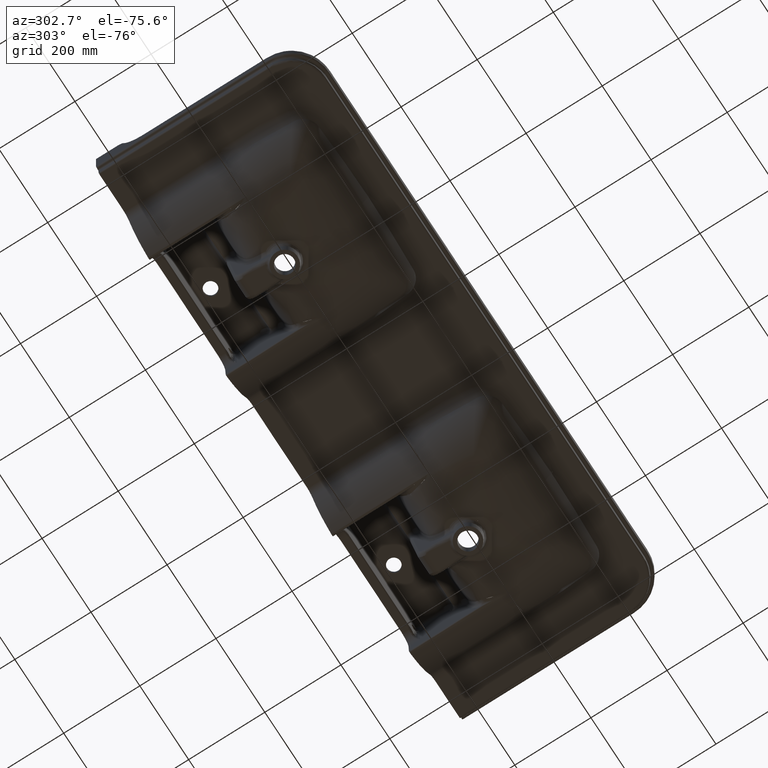
[diagram: clean part render]
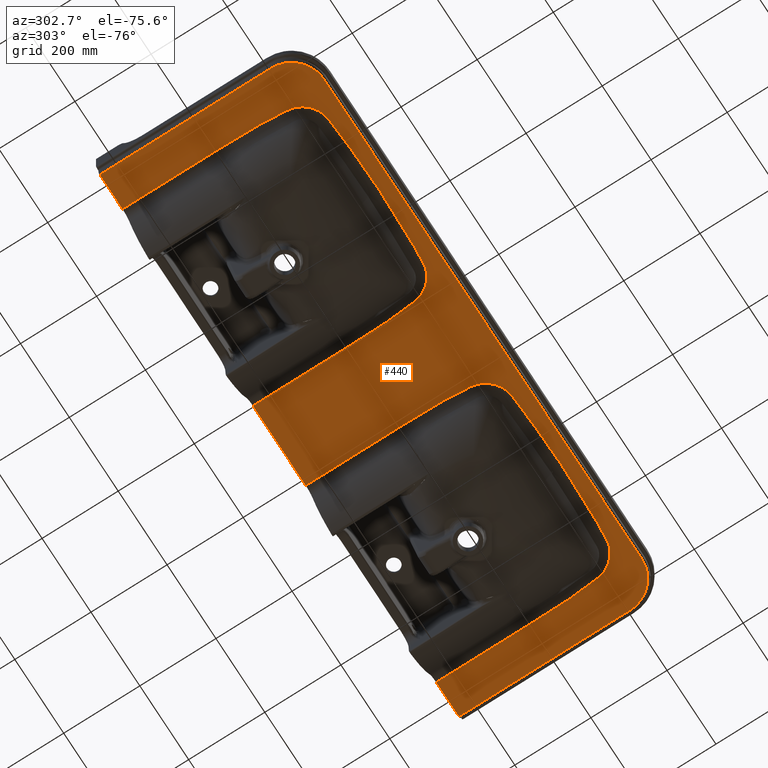
[diagram: same view with one face highlighted and labeled with its STEP entity id]
A machine part, auxiliary view. The second image highlights one B-rep face of the part: STEP entity #440.
In plain terms, the highlighted planar face has unit normal (0, 0, -1).
Its self-contained STEP definition (entity closure, byte-faithful):
#440=ADVANCED_FACE($,(#1085),#7983,.T.);
#1085=FACE_OUTER_BOUND($,#1746,.T.);
#1746=EDGE_LOOP($,(#3913,#3914,#3915,#3916,#3917,#3918,#3919,#3920,#3921,
#3922,#3923,#3924,#3925,#3926,#3927,#3928));
#3913=ORIENTED_EDGE($,*,*,#6257,.T.);
#3914=ORIENTED_EDGE($,*,*,#5365,.F.);
#3915=ORIENTED_EDGE($,*,*,#5369,.F.);
#3916=ORIENTED_EDGE($,*,*,#5372,.F.);
#3917=ORIENTED_EDGE($,*,*,#5375,.F.);
#3918=ORIENTED_EDGE($,*,*,#5378,.F.);
#3919=ORIENTED_EDGE($,*,*,#6259,.T.);
#3920=ORIENTED_EDGE($,*,*,#6060,.T.);
#3921=ORIENTED_EDGE($,*,*,#6050,.T.);
#3922=ORIENTED_EDGE($,*,*,#5881,.T.);
#3923=ORIENTED_EDGE($,*,*,#5892,.T.);
#3924=ORIENTED_EDGE($,*,*,#6258,.T.);
#3925=ORIENTED_EDGE($,*,*,#5500,.T.);
#3926=ORIENTED_EDGE($,*,*,#5489,.T.);
#3927=ORIENTED_EDGE($,*,*,#5673,.T.);
#3928=ORIENTED_EDGE($,*,*,#5683,.T.);
#5365=EDGE_CURVE($,#7026,#7025,#9189,.T.);
#5369=EDGE_CURVE($,#7029,#7026,#8650,.T.);
#5372=EDGE_CURVE($,#7031,#7029,#9191,.T.);
#5375=EDGE_CURVE($,#7033,#7031,#8654,.T.);
#5378=EDGE_CURVE($,#7035,#7033,#9193,.T.);
#5489=EDGE_CURVE($,#7114,#7113,#9225,.T.);
#5500=EDGE_CURVE($,#7122,#7114,#9233,.T.);
#5673=EDGE_CURVE($,#7113,#7220,#9325,.T.);
#5683=EDGE_CURVE($,#7220,#7227,#9333,.T.);
#5881=EDGE_CURVE($,#7319,#7318,#9435,.T.);
#5892=EDGE_CURVE($,#7318,#7327,#9443,.T.);
#6050=EDGE_CURVE($,#7420,#7319,#9527,.T.);
#6060=EDGE_CURVE($,#7427,#7420,#9535,.T.);
#6257=EDGE_CURVE($,#7227,#7025,#9641,.T.);
#6258=EDGE_CURVE($,#7327,#7122,#9642,.T.);
#6259=EDGE_CURVE($,#7035,#7427,#9643,.T.);
#7025=VERTEX_POINT($,#247993);
#7026=VERTEX_POINT($,#247994);
#7029=VERTEX_POINT($,#247997);
#7031=VERTEX_POINT($,#247999);
#7033=VERTEX_POINT($,#248001);
#7035=VERTEX_POINT($,#248003);
#7113=VERTEX_POINT($,#248081);
#7114=VERTEX_POINT($,#248082);
#7122=VERTEX_POINT($,#248090);
#7220=VERTEX_POINT($,#248188);
#7227=VERTEX_POINT($,#248195);
#7318=VERTEX_POINT($,#248286);
#7319=VERTEX_POINT($,#248287);
#7327=VERTEX_POINT($,#248295);
#7420=VERTEX_POINT($,#248388);
#7427=VERTEX_POINT($,#248395);
#7983=PLANE($,#10417);
#8650=(
BOUNDED_CURVE()
B_SPLINE_CURVE(2,(#12030,#12031,#12032),.UNSPECIFIED.,.F.,.F.)
B_SPLINE_CURVE_WITH_KNOTS((3,3),(1.5707963267949,3.14159265358979),.UNSPECIFIED.)
CURVE()
GEOMETRIC_REPRESENTATION_ITEM()
RATIONAL_B_SPLINE_CURVE((1.,0.707106781186517,1.))
REPRESENTATION_ITEM($)
);
#8654=(
BOUNDED_CURVE()
B_SPLINE_CURVE(2,(#12046,#12047,#12048),.UNSPECIFIED.,.F.,.F.)
B_SPLINE_CURVE_WITH_KNOTS((3,3),(4.71238898038469,6.28318530717959),.UNSPECIFIED.)
CURVE()
GEOMETRIC_REPRESENTATION_ITEM()
RATIONAL_B_SPLINE_CURVE((1.,0.707106781186546,1.))
REPRESENTATION_ITEM($)
);
#9189=B_SPLINE_CURVE_WITH_KNOTS($,1,(#12020,#12021),.UNSPECIFIED.,.F.,.F.,
(2,2),(1.5707963267949,2.5707963267949),.UNSPECIFIED.);
#9191=B_SPLINE_CURVE_WITH_KNOTS($,1,(#12039,#12040),.UNSPECIFIED.,.F.,.F.,
(2,2),(1.5707963267949,2.5707963267949),.UNSPECIFIED.);
#9193=B_SPLINE_CURVE_WITH_KNOTS($,1,(#12055,#12056),.UNSPECIFIED.,.F.,.F.,
(2,2),(4.71238898038469,5.71238898038469),.UNSPECIFIED.);
#9225=B_SPLINE_CURVE_WITH_KNOTS($,3,(#12608,#12609,#12610,#12611,#12612,
#12613,#12614,#12615,#12616,#12617,#12618,#12619,#12620,#12621,#12622,#12623,
#12624,#12625,#12626,#12627,#12628,#12629,#12630,#12631,#12632,#12633,#12634,
#12635,#12636,#12637,#12638,#12639,#12640,#12641,#12642,#12643,#12644,#12645,
#12646,#12647,#12648,#12649),.UNSPECIFIED.,.F.,.F.,(4,2,2,2,2,2,2,2,2,2,
2,2,2,2,2,2,2,2,2,2,4),(2.00000935643845,2.12500935643845,2.25000935643845,
2.31250935643845,2.34375935643845,2.35938435643845,2.37500935643845,2.40625935643845,
2.42188435643845,2.43750935643845,2.46875935643845,2.48438435643845,2.50000935643845,
2.53125935643845,2.54688435643845,2.56250935643845,2.57813435643845,2.59375935643845,
2.62500935643845,2.75000935643845,3.00000935643845),.UNSPECIFIED.);
#9233=B_SPLINE_CURVE_WITH_KNOTS($,1,(#12744,#12745),.UNSPECIFIED.,.F.,.F.,
(2,2),(0.,1.),.UNSPECIFIED.);
#9325=B_SPLINE_CURVE_WITH_KNOTS($,3,(#15545,#15546,#15547,#15548,#15549,
#15550,#15551,#15552,#15553,#15554,#15555,#15556,#15557,#15558,#15559,#15560,
#15561,#15562,#15563,#15564,#15565,#15566,#15567,#15568,#15569,#15570,#15571,
#15572,#15573,#15574,#15575,#15576,#15577,#15578,#15579,#15580,#15581,#15582,
#15583,#15584,#15585,#15586),.UNSPECIFIED.,.F.,.F.,(4,2,2,2,2,2,2,2,2,2,
2,2,2,2,2,2,2,2,2,2,4),(2.08104888053683,2.33104888053683,2.45604888053683,
2.48729888053683,2.50292388053683,2.51854888053683,2.53417388053683,2.54979888053683,
2.58104888053683,2.59667388053683,2.61229888053683,2.64354888053683,2.65917388053683,
2.67479888053683,2.70604888053683,2.72167388053683,2.73729888053683,2.76854888053683,
2.83104888053683,2.95604888053683,3.08104888053683),.UNSPECIFIED.);
#9333=B_SPLINE_CURVE_WITH_KNOTS($,1,(#15657,#15658),.UNSPECIFIED.,.F.,.F.,
(2,2),(2.,3.),.UNSPECIFIED.);
#9435=B_SPLINE_CURVE_WITH_KNOTS($,3,(#18410,#18411,#18412,#18413,#18414,
#18415,#18416,#18417,#18418,#18419,#18420,#18421,#18422,#18423,#18424,#18425,
#18426,#18427,#18428,#18429,#18430,#18431,#18432,#18433,#18434,#18435,#18436,
#18437,#18438,#18439,#18440,#18441,#18442,#18443,#18444,#18445,#18446,#18447,
#18448,#18449,#18450,#18451),.UNSPECIFIED.,.F.,.F.,(4,2,2,2,2,2,2,2,2,2,
2,2,2,2,2,2,2,2,2,2,4),(2.08104888053683,2.33104888053661,2.45604888053664,
2.48729888053665,2.50292388053666,2.51854888053666,2.53417388053666,2.54979888053667,
2.58104888053668,2.59667388053668,2.61229888053669,2.6435488805367,2.6591738805367,
2.6747988805367,2.70604888053671,2.72167388053672,2.73729888053672,2.76854888053673,
2.83104888053675,2.95604888053679,3.08104888053683),.UNSPECIFIED.);
#9443=B_SPLINE_CURVE_WITH_KNOTS($,1,(#18525,#18526),.UNSPECIFIED.,.F.,.F.,
(2,2),(2.,3.),.UNSPECIFIED.);
#9527=B_SPLINE_CURVE_WITH_KNOTS($,3,(#20849,#20850,#20851,#20852,#20853,
#20854,#20855,#20856,#20857,#20858,#20859,#20860,#20861,#20862,#20863,#20864,
#20865,#20866,#20867,#20868,#20869,#20870,#20871,#20872,#20873,#20874,#20875,
#20876,#20877,#20878,#20879,#20880,#20881,#20882,#20883,#20884,#20885,#20886,
#20887,#20888,#20889,#20890),.UNSPECIFIED.,.F.,.F.,(4,2,2,2,2,2,2,2,2,2,
2,2,2,2,2,2,2,2,2,2,4),(2.00000935643844,2.12500935643848,2.25000935643852,
2.31250935643854,2.34375935643855,2.35938435643856,2.37500935643856,2.40625935643857,
2.42188435643858,2.43750935643858,2.46875935643859,2.48438435643859,2.5000093564386,
2.53125935643861,2.54688435643861,2.56250935643861,2.57813435643862,2.59375935643862,
2.62500935643863,2.75000935643867,3.00000935643844),.UNSPECIFIED.);
#9535=B_SPLINE_CURVE_WITH_KNOTS($,1,(#20982,#20983),.UNSPECIFIED.,.F.,.F.,
(2,2),(0.,1.),.UNSPECIFIED.);
#9641=B_SPLINE_CURVE_WITH_KNOTS($,1,(#23505,#23506),.UNSPECIFIED.,.F.,.F.,
(2,2),(0.,1.),.UNSPECIFIED.);
#9642=B_SPLINE_CURVE_WITH_KNOTS($,1,(#23507,#23508),.UNSPECIFIED.,.F.,.F.,
(2,2),(12.1415926535898,13.1415926535898),.UNSPECIFIED.);
#9643=B_SPLINE_CURVE_WITH_KNOTS($,1,(#23509,#23510),.UNSPECIFIED.,.F.,.F.,
(2,2),(7.14159265358979,8.14159265358979),.UNSPECIFIED.);
#10417=AXIS2_PLACEMENT_3D($,#247236,#10531,$);
#10531=DIRECTION($,(0.,0.,-1.));
#12020=CARTESIAN_POINT($,(1079.08515165765,-180.848245622076,154.999999999963));
#12021=CARTESIAN_POINT($,(1079.08515165765,269.151754377924,154.999999999963));
#12030=CARTESIAN_POINT($,(994.085151657655,-265.848245622076,154.999999999963));
#12031=CARTESIAN_POINT($,(1079.08515165766,-265.848245622078,154.999999999963));
#12032=CARTESIAN_POINT($,(1079.08515165765,-180.848245622076,154.999999999963));
#12039=CARTESIAN_POINT($,(-305.914848342348,-265.848245622076,154.999999999964));
#12040=CARTESIAN_POINT($,(994.085151657655,-265.848245622076,154.999999999963));
#12046=CARTESIAN_POINT($,(-390.914848342348,-180.848245622076,154.999999999963));
#12047=CARTESIAN_POINT($,(-390.914848342348,-265.848245622076,154.999999999963));
#12048=CARTESIAN_POINT($,(-305.914848342348,-265.848245622076,154.999999999964));
#12055=CARTESIAN_POINT($,(-390.914848342348,269.151754377924,154.999999999963));
#12056=CARTESIAN_POINT($,(-390.914848342348,-180.848245622076,154.999999999963));
#12608=CARTESIAN_POINT($,(452.100284267152,14.6347990589243,154.999999999963));
#12609=CARTESIAN_POINT($,(451.400951325132,-5.1207384620734,154.999999999964));
#12610=CARTESIAN_POINT($,(451.399221554111,-24.8806447590709,154.999999999964));
#12611=CARTESIAN_POINT($,(452.333906256068,-64.4001656120658,154.999999999965));
#12612=CARTESIAN_POINT($,(453.276516907046,-84.1293798260631,154.999999999965));
#12613=CARTESIAN_POINT($,(455.247781303013,-113.687379521059,154.999999999966));
#12614=CARTESIAN_POINT($,(455.999114674001,-123.533988802058,154.999999999966));
#12615=CARTESIAN_POINT($,(457.256981291984,-138.295491732056,154.999999999966));
#12616=CARTESIAN_POINT($,(457.698128589979,-143.214587835055,154.999999999966));
#12617=CARTESIAN_POINT($,(458.39165135697,-150.591188037054,154.999999999966));
#12618=CARTESIAN_POINT($,(458.628127742967,-153.049713996054,154.999999999967));
#12619=CARTESIAN_POINT($,(459.111540197961,-157.966093653053,154.999999999967));
#12620=CARTESIAN_POINT($,(459.333475919958,-160.434476274053,154.999999999967));
#12621=CARTESIAN_POINT($,(460.430588010949,-167.712135746052,154.999999999967));
#12622=CARTESIAN_POINT($,(461.612759357943,-172.421176043051,154.999999999967));
#12623=CARTESIAN_POINT($,(464.061226140933,-179.27093358005,154.999999999967));
#12624=CARTESIAN_POINT($,(464.99030692093,-181.518428711049,154.999999999967));
#12625=CARTESIAN_POINT($,(467.083851146922,-185.938885839048,154.999999999967));
#12626=CARTESIAN_POINT($,(468.253764510919,-188.120041146048,154.999999999967));
#12627=CARTESIAN_POINT($,(472.090530178908,-194.467852131047,154.999999999968));
#12628=CARTESIAN_POINT($,(475.0461568119,-198.383876241046,154.999999999968));
#12629=CARTESIAN_POINT($,(480.016573487889,-203.748689886044,154.999999999968));
#12630=CARTESIAN_POINT($,(481.765423211885,-205.454529348044,154.999999999968));
#12631=CARTESIAN_POINT($,(485.451284049877,-208.697697065043,154.999999999968));
#12632=CARTESIAN_POINT($,(487.397616901873,-210.240830765043,154.999999999968));
#12633=CARTESIAN_POINT($,(493.395135696862,-214.516598437041,154.999999999968));
#12634=CARTESIAN_POINT($,(497.633606130854,-216.929429321041,154.999999999968));
#12635=CARTESIAN_POINT($,(504.339677215844,-219.913701496039,154.999999999969));
#12636=CARTESIAN_POINT($,(506.64465368384,-220.804989858039,154.999999999969));
#12637=CARTESIAN_POINT($,(511.323568090833,-222.353198457038,154.999999999969));
#12638=CARTESIAN_POINT($,(513.67794288983,-223.005041915038,154.999999999969));
#12639=CARTESIAN_POINT($,(518.414826410823,-224.078150306037,154.999999999969));
#12640=CARTESIAN_POINT($,(520.79732700182,-224.499481873036,154.999999999969));
#12641=CARTESIAN_POINT($,(525.589318030814,-225.120943042035,154.999999999969));
#12642=CARTESIAN_POINT($,(528.003125153811,-225.285694180035,154.999999999969));
#12643=CARTESIAN_POINT($,(535.248946562802,-225.743885987034,154.999999999969));
#12644=CARTESIAN_POINT($,(540.080358687796,-226.042261813033,154.999999999969));
#12645=CARTESIAN_POINT($,(564.242157714767,-227.49530617803,154.99999999997));
#12646=CARTESIAN_POINT($,(583.583252352744,-228.533767861027,154.99999999997));
#12647=CARTESIAN_POINT($,(641.625872402674,-231.129509783019,154.999999999971));
#12648=CARTESIAN_POINT($,(680.349736498629,-232.142942241013,154.999999999972));
#12649=CARTESIAN_POINT($,(719.085151657584,-232.142942241008,154.999999999973));
#12744=CARTESIAN_POINT($,(452.100284266652,269.151754377924,154.999999999963));
#12745=CARTESIAN_POINT($,(452.100284267152,14.6347990589243,154.999999999963));
#15545=CARTESIAN_POINT($,(719.085151657584,-232.142942241008,154.999999999973));
#15546=CARTESIAN_POINT($,(757.820566816551,-232.142942241013,154.999999999972));
#15547=CARTESIAN_POINT($,(796.544430912516,-231.129509783019,154.999999999971));
#15548=CARTESIAN_POINT($,(854.587050962463,-228.533767861027,154.99999999997));
#15549=CARTESIAN_POINT($,(873.928145600446,-227.49530617803,154.99999999997));
#15550=CARTESIAN_POINT($,(898.089944627423,-226.042261813033,154.999999999969));
#15551=CARTESIAN_POINT($,(902.921356752419,-225.743885987034,154.999999999969));
#15552=CARTESIAN_POINT($,(910.167178161412,-225.285694180035,154.999999999969));
#15553=CARTESIAN_POINT($,(912.58098528441,-225.120943042035,154.999999999969));
#15554=CARTESIAN_POINT($,(917.372976313405,-224.499481873036,154.999999999969));
#15555=CARTESIAN_POINT($,(919.755476904403,-224.078150306037,154.999999999969));
#15556=CARTESIAN_POINT($,(924.492360425398,-223.005041915038,154.999999999969));
#15557=CARTESIAN_POINT($,(926.846735224395,-222.353198457038,154.999999999969));
#15558=CARTESIAN_POINT($,(931.52564963139,-220.804989858039,154.999999999969));
#15559=CARTESIAN_POINT($,(933.830626099387,-219.913701496039,154.999999999969));
#15560=CARTESIAN_POINT($,(940.536697184379,-216.929429321041,154.999999999968));
#15561=CARTESIAN_POINT($,(944.775167618373,-214.516598437041,154.999999999968));
#15562=CARTESIAN_POINT($,(950.772686413364,-210.240830765043,154.999999999968));
#15563=CARTESIAN_POINT($,(952.719019265361,-208.697697065043,154.999999999968));
#15564=CARTESIAN_POINT($,(956.404880103356,-205.454529348044,154.999999999968));
#15565=CARTESIAN_POINT($,(958.153729827353,-203.748689886044,154.999999999968));
#15566=CARTESIAN_POINT($,(963.124146503344,-198.383876241046,154.999999999968));
#15567=CARTESIAN_POINT($,(966.079773136339,-194.467852131047,154.999999999968));
#15568=CARTESIAN_POINT($,(969.91653880433,-188.120041146048,154.999999999967));
#15569=CARTESIAN_POINT($,(971.086452168327,-185.938885839048,154.999999999967));
#15570=CARTESIAN_POINT($,(973.179996394322,-181.518428711049,154.999999999967));
#15571=CARTESIAN_POINT($,(974.109077174319,-179.27093358005,154.999999999967));
#15572=CARTESIAN_POINT($,(976.557543957312,-172.421176043051,154.999999999967));
#15573=CARTESIAN_POINT($,(977.739715304307,-167.712135746052,154.999999999967));
#15574=CARTESIAN_POINT($,(978.8368273953,-160.434476274053,154.999999999967));
#15575=CARTESIAN_POINT($,(979.058763117298,-157.966093653053,154.999999999967));
#15576=CARTESIAN_POINT($,(979.542175572293,-153.049713996054,154.999999999967));
#15577=CARTESIAN_POINT($,(979.778651958291,-150.591188037054,154.999999999966));
#15578=CARTESIAN_POINT($,(980.472174725285,-143.214587835055,154.999999999966));
#15579=CARTESIAN_POINT($,(980.91332202328,-138.295491732056,154.999999999966));
#15580=CARTESIAN_POINT($,(982.171188641267,-123.533988802058,154.999999999966));
#15581=CARTESIAN_POINT($,(982.922522012259,-113.687379521059,154.999999999966));
#15582=CARTESIAN_POINT($,(984.893786408233,-84.1293798260631,154.999999999965));
#15583=CARTESIAN_POINT($,(985.836397059216,-64.4001656120658,154.999999999965));
#15584=CARTESIAN_POINT($,(986.771081761184,-24.8806447590709,154.999999999964));
#15585=CARTESIAN_POINT($,(986.769351990168,-5.1207384620734,154.999999999964));
#15586=CARTESIAN_POINT($,(986.070019048152,14.6347990589243,154.999999999963));
#15657=CARTESIAN_POINT($,(986.070019048152,14.6347990589243,154.999999999963));
#15658=CARTESIAN_POINT($,(986.070019048652,269.151754377924,154.999999999948));
#18410=CARTESIAN_POINT($,(-30.9148483423476,-232.142942241147,154.999999999983));
#18411=CARTESIAN_POINT($,(7.82056681657857,-232.142942240883,154.999999999963));
#18412=CARTESIAN_POINT($,(46.5444309125041,-231.1295097829,154.999999999963));
#18413=CARTESIAN_POINT($,(104.587050962414,-228.533767860927,154.999999999963));
#18414=CARTESIAN_POINT($,(123.928145600399,-227.495306177936,154.999999999963));
#18415=CARTESIAN_POINT($,(148.089944627381,-226.042261812946,154.999999999963));
#18416=CARTESIAN_POINT($,(152.921356752377,-225.743885986949,154.999999999963));
#18417=CARTESIAN_POINT($,(160.167178161371,-225.285694179952,154.999999999963));
#18418=CARTESIAN_POINT($,(162.580985284369,-225.120943041953,154.999999999963));
#18419=CARTESIAN_POINT($,(167.372976313365,-224.499481872955,154.999999999963));
#18420=CARTESIAN_POINT($,(169.755476904363,-224.078150305956,154.999999999963));
#18421=CARTESIAN_POINT($,(174.492360425359,-223.005041914959,154.999999999963));
#18422=CARTESIAN_POINT($,(176.846735224357,-222.35319845696,154.999999999963));
#18423=CARTESIAN_POINT($,(181.525649631353,-220.804989857962,154.999999999963));
#18424=CARTESIAN_POINT($,(183.83062609935,-219.913701495964,154.999999999963));
#18425=CARTESIAN_POINT($,(190.536697184343,-216.929429320968,154.999999999963));
#18426=CARTESIAN_POINT($,(194.775167618338,-214.51659843697,154.999999999963));
#18427=CARTESIAN_POINT($,(200.772686413331,-210.240830764974,154.999999999963));
#18428=CARTESIAN_POINT($,(202.719019265329,-208.697697064976,154.999999999963));
#18429=CARTESIAN_POINT($,(206.404880103324,-205.454529347979,154.999999999963));
#18430=CARTESIAN_POINT($,(208.153729827321,-203.74868988598,154.999999999963));
#18431=CARTESIAN_POINT($,(213.124146503314,-198.383876240984,154.999999999963));
#18432=CARTESIAN_POINT($,(216.079773136309,-194.467852130987,154.999999999963));
#18433=CARTESIAN_POINT($,(219.916538804302,-188.120041145991,154.999999999963));
#18434=CARTESIAN_POINT($,(221.0864521683,-185.938885838992,154.999999999963));
#18435=CARTESIAN_POINT($,(223.179996394295,-181.518428710995,154.999999999963));
#18436=CARTESIAN_POINT($,(224.109077174293,-179.270933579996,154.999999999963));
#18437=CARTESIAN_POINT($,(226.557543957287,-172.421176043,154.999999999963));
#18438=CARTESIAN_POINT($,(227.739715304282,-167.712135746002,154.999999999963));
#18439=CARTESIAN_POINT($,(228.836827395277,-160.434476274005,154.999999999963));
#18440=CARTESIAN_POINT($,(229.058763117275,-157.966093653006,154.999999999963));
#18441=CARTESIAN_POINT($,(229.542175572271,-153.049713996008,154.999999999963));
#18442=CARTESIAN_POINT($,(229.778651958269,-150.591188037009,154.999999999963));
#18443=CARTESIAN_POINT($,(230.472174725264,-143.214587835013,154.999999999963));
#18444=CARTESIAN_POINT($,(230.91332202326,-138.295491732015,154.999999999963));
#18445=CARTESIAN_POINT($,(232.171188641249,-123.533988802021,154.999999999963));
#18446=CARTESIAN_POINT($,(232.922522012242,-113.687379521025,154.999999999963));
#18447=CARTESIAN_POINT($,(234.89378640822,-84.1293798260372,154.999999999963));
#18448=CARTESIAN_POINT($,(235.836397059206,-64.4001656120454,154.999999999963));
#18449=CARTESIAN_POINT($,(236.771081761179,-24.8806447590609,154.999999999963));
#18450=CARTESIAN_POINT($,(236.769351990165,-5.1207384620684,154.999999999963));
#18451=CARTESIAN_POINT($,(236.070019048152,14.6347990589243,154.999999999963));
#18525=CARTESIAN_POINT($,(236.070019048152,14.6347990589243,154.999999999963));
#18526=CARTESIAN_POINT($,(236.070019048652,269.151754377924,154.999999999948));
#20849=CARTESIAN_POINT($,(-297.899715732848,14.6347990589243,154.999999999963));
#20850=CARTESIAN_POINT($,(-298.59904867486,-5.12073846208341,154.999999999963));
#20851=CARTESIAN_POINT($,(-298.600778445874,-24.880644759091,154.999999999963));
#20852=CARTESIAN_POINT($,(-297.666093743901,-64.4001656121063,154.999999999963));
#20853=CARTESIAN_POINT($,(-296.723483092916,-84.1293798261145,154.999999999963));
#20854=CARTESIAN_POINT($,(-294.752218696937,-113.687379521127,154.999999999963));
#20855=CARTESIAN_POINT($,(-294.000885325944,-123.533988802131,154.999999999963));
#20856=CARTESIAN_POINT($,(-292.743018707955,-138.295491732137,154.999999999963));
#20857=CARTESIAN_POINT($,(-292.301871409959,-143.214587835139,154.999999999963));
#20858=CARTESIAN_POINT($,(-291.608348642964,-150.591188037142,154.999999999963));
#20859=CARTESIAN_POINT($,(-291.371872256966,-153.049713996143,154.999999999963));
#20860=CARTESIAN_POINT($,(-290.88845980197,-157.966093653145,154.999999999963));
#20861=CARTESIAN_POINT($,(-290.666524079972,-160.434476274147,154.999999999963));
#20862=CARTESIAN_POINT($,(-289.569411988978,-167.71213574615,154.999999999963));
#20863=CARTESIAN_POINT($,(-288.387240641982,-172.421176043152,154.999999999963));
#20864=CARTESIAN_POINT($,(-285.938773858988,-179.270933580156,154.999999999963));
#20865=CARTESIAN_POINT($,(-285.00969307899,-181.518428711157,154.999999999963));
#20866=CARTESIAN_POINT($,(-282.916148852995,-185.938885839159,154.999999999963));
#20867=CARTESIAN_POINT($,(-281.746235488997,-188.120041146161,154.999999999963));
#20868=CARTESIAN_POINT($,(-277.909469821004,-194.467852131165,154.999999999963));
#20869=CARTESIAN_POINT($,(-274.953843188009,-198.383876241168,154.999999999963));
#20870=CARTESIAN_POINT($,(-269.983426512016,-203.748689886172,154.999999999963));
#20871=CARTESIAN_POINT($,(-268.234576788019,-205.454529348173,154.999999999963));
#20872=CARTESIAN_POINT($,(-264.548715950024,-208.697697065176,154.999999999963));
#20873=CARTESIAN_POINT($,(-262.602383098026,-210.240830765177,154.999999999963));
#20874=CARTESIAN_POINT($,(-256.604864303034,-214.516598437182,154.999999999963));
#20875=CARTESIAN_POINT($,(-252.366393869038,-216.929429321184,154.999999999963));
#20876=CARTESIAN_POINT($,(-245.660322784045,-219.913701496188,154.999999999963));
#20877=CARTESIAN_POINT($,(-243.355346316048,-220.804989858189,154.999999999963));
#20878=CARTESIAN_POINT($,(-238.676431909052,-222.353198457192,154.999999999963));
#20879=CARTESIAN_POINT($,(-236.322057110054,-223.005041915193,154.999999999963));
#20880=CARTESIAN_POINT($,(-231.585173589059,-224.078150306196,154.999999999963));
#20881=CARTESIAN_POINT($,(-229.202672998061,-224.499481873197,154.999999999963));
#20882=CARTESIAN_POINT($,(-224.410681969065,-225.120943042199,154.999999999963));
#20883=CARTESIAN_POINT($,(-221.996874846066,-225.2856941802,154.999999999963));
#20884=CARTESIAN_POINT($,(-214.751053437072,-225.743885987203,154.999999999963));
#20885=CARTESIAN_POINT($,(-209.919641312076,-226.042261813205,154.999999999963));
#20886=CARTESIAN_POINT($,(-185.757842285095,-227.495306178216,154.999999999963));
#20887=CARTESIAN_POINT($,(-166.41674764711,-228.533767861225,154.999999999963));
#20888=CARTESIAN_POINT($,(-108.374127597199,-231.129509783248,154.999999999963));
#20889=CARTESIAN_POINT($,(-69.6502635012738,-232.142942241264,154.999999999963));
#20890=CARTESIAN_POINT($,(-30.9148483423476,-232.142942241147,154.999999999983));
#20982=CARTESIAN_POINT($,(-297.899715733348,269.151754377924,154.999999999963));
#20983=CARTESIAN_POINT($,(-297.899715732848,14.6347990589243,154.999999999963));
#23505=CARTESIAN_POINT($,(986.070019048652,269.151754377924,154.999999999948));
#23506=CARTESIAN_POINT($,(1079.08515165765,269.151754377924,154.999999999963));
#23507=CARTESIAN_POINT($,(236.070019048652,269.151754377924,154.999999999948));
#23508=CARTESIAN_POINT($,(452.100284266652,269.151754377924,154.999999999963));
#23509=CARTESIAN_POINT($,(-390.914848342348,269.151754377924,154.999999999963));
#23510=CARTESIAN_POINT($,(-297.899715733348,269.151754377924,154.999999999963));
#247236=CARTESIAN_POINT($,(-390.914848342348,-265.848245622076,154.999999999963));
#247993=CARTESIAN_POINT($,(1079.08515165765,269.151754377924,154.999999999963));
#247994=CARTESIAN_POINT($,(1079.08515165765,-180.848245622076,154.999999999963));
#247997=CARTESIAN_POINT($,(994.085151657655,-265.848245622076,154.999999999963));
#247999=CARTESIAN_POINT($,(-305.914848342348,-265.848245622076,154.999999999964));
#248001=CARTESIAN_POINT($,(-390.914848342348,-180.848245622076,154.999999999963));
#248003=CARTESIAN_POINT($,(-390.914848342348,269.151754377924,154.999999999963));
#248081=CARTESIAN_POINT($,(719.085151657584,-232.142942241008,154.999999999973));
#248082=CARTESIAN_POINT($,(452.100284267152,14.6347990589243,154.999999999963));
#248090=CARTESIAN_POINT($,(452.100284266652,269.151754377924,154.999999999963));
#248188=CARTESIAN_POINT($,(986.070019048152,14.6347990589243,154.999999999963));
#248195=CARTESIAN_POINT($,(986.070019048652,269.151754377924,154.999999999948));
#248286=CARTESIAN_POINT($,(236.070019048152,14.6347990589243,154.999999999963));
#248287=CARTESIAN_POINT($,(-30.9148483423476,-232.142942241147,154.999999999983));
#248295=CARTESIAN_POINT($,(236.070019048652,269.151754377924,154.999999999948));
#248388=CARTESIAN_POINT($,(-297.899715732848,14.6347990589243,154.999999999963));
#248395=CARTESIAN_POINT($,(-297.899715733348,269.151754377924,154.999999999963));